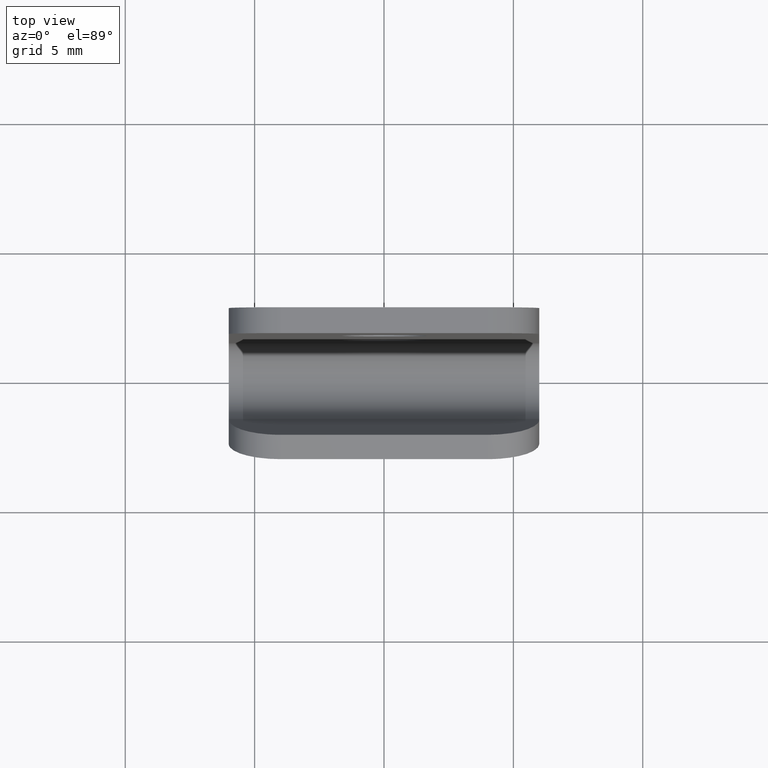
[diagram: clean part render]
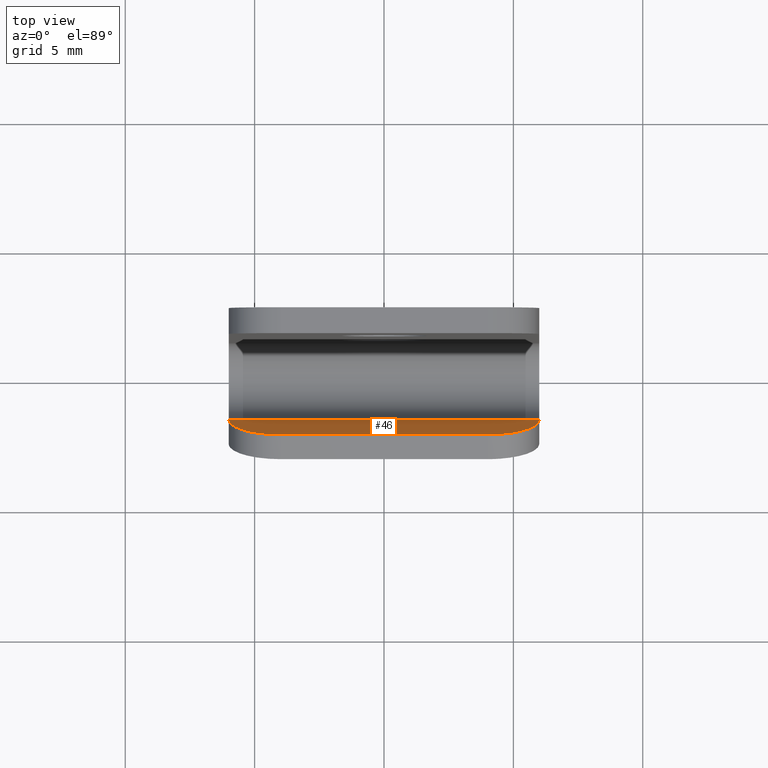
[diagram: same view with one face highlighted and labeled with its STEP entity id]
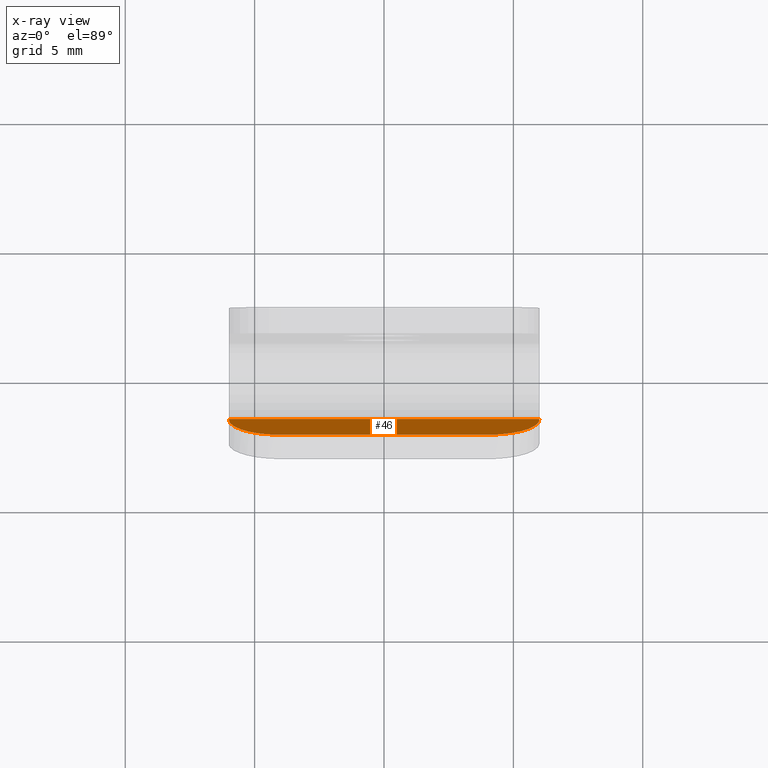
[diagram: x-ray of the same camera — body ghosted, the highlighted face saturated]
A machine part, top view. The second image highlights one B-rep face of the part: STEP entity #46.
The next image is the same camera in x-ray: the body ghosted, the highlighted face saturated — about 0% of this face is hidden behind the body in this view.
In plain terms, the highlighted planar face has unit normal (0, -0.9511, -0.309).
Its self-contained STEP definition (entity closure, byte-faithful):
#46=ADVANCED_FACE('',(#119),#118,.F.);
#118=PLANE('',#275);
#119=FACE_OUTER_BOUND('',#276,.T.);
#272=CARTESIAN_POINT('',(-7.20000000000E+00,-2.12837169133E+00,4.19635254916E+00));
#273=DIRECTION('',(0.00000000000E+00,-9.51056516295E-01,-3.09016994375E-01));
#274=DIRECTION('',(0.00000000000E+00,3.09016994375E-01,-9.51056516295E-01));
#275=AXIS2_PLACEMENT_3D('',#272,#273,#274);
#276=EDGE_LOOP('',(#370,#371,#372,#373,#374,#375));
#370=ORIENTED_EDGE('',*,*,#441,.T.);
#371=ORIENTED_EDGE('',*,*,#432,.T.);
#372=ORIENTED_EDGE('',*,*,#447,.F.);
#373=ORIENTED_EDGE('',*,*,#436,.T.);
#374=ORIENTED_EDGE('',*,*,#451,.F.);
#375=ORIENTED_EDGE('',*,*,#457,.T.);
#432=EDGE_CURVE('',#480,#481,#482,.T.);
#436=EDGE_CURVE('',#508,#509,#510,.T.);
#441=EDGE_CURVE('',#543,#480,#544,.T.);
#447=EDGE_CURVE('',#508,#481,#584,.T.);
#451=EDGE_CURVE('',#609,#509,#610,.T.);
#457=EDGE_CURVE('',#609,#543,#650,.T.);
#480=VERTEX_POINT('',#800);
#481=VERTEX_POINT('',#801);
#482=(BOUNDED_CURVE() B_SPLINE_CURVE(2,(#802,#803,#804),.UNSPECIFIED.,.F.,.F.) B_SPLINE_CURVE_WITH_KNOTS((3,3),(-4.71238898038E+00,-3.14159265359E+00),.UNSPECIFIED.) CURVE() GEOMETRIC_REPRESENTATION_ITEM() RATIONAL_B_SPLINE_CURVE((1.00000000000E+00,7.07106781187E-01,1.00000000000E+00)) REPRESENTATION_ITEM('') );
#508=VERTEX_POINT('',#816);
#509=VERTEX_POINT('',#817);
#510=(BOUNDED_CURVE() B_SPLINE_CURVE(2,(#818,#819,#820),.UNSPECIFIED.,.F.,.F.) B_SPLINE_CURVE_WITH_KNOTS((3,3),(-6.28318530718E+00,-4.71238898038E+00),.UNSPECIFIED.) CURVE() GEOMETRIC_REPRESENTATION_ITEM() RATIONAL_B_SPLINE_CURVE((1.00000000000E+00,7.07106781187E-01,1.00000000000E+00)) REPRESENTATION_ITEM('') );
#543=VERTEX_POINT('',#836);
#544=LINE('',#837,#838);
#584=LINE('',#861,#862);
#609=VERTEX_POINT('',#874);
#610=LINE('',#875,#876);
#650=LINE('',#899,#900);
#800=CARTESIAN_POINT('',(-6.00000000000E+00,-1.44574889648E+00,2.09545561134E+00));
#801=CARTESIAN_POINT('',(-4.00000000000E+00,-2.06457288071E+00,4.00000000000E+00));
#802=CARTESIAN_POINT('',(-6.00000000000E+00,-1.44574889648E+00,2.09545561134E+00));
#803=CARTESIAN_POINT('',(-6.00000000000E+00,-2.06457288071E+00,4.00000000000E+00));
#804=CARTESIAN_POINT('',(-4.00000000000E+00,-2.06457288071E+00,4.00000000000E+00));
#816=CARTESIAN_POINT('',(4.00000000000E+00,-2.06457288071E+00,4.00000000000E+00));
#817=CARTESIAN_POINT('',(6.00000000000E+00,-1.44574889648E+00,2.09545561134E+00));
#818=CARTESIAN_POINT('',(4.00000000000E+00,-2.06457288071E+00,4.00000000000E+00));
#819=CARTESIAN_POINT('',(6.00000000000E+00,-2.06457288071E+00,4.00000000000E+00));
#820=CARTESIAN_POINT('',(6.00000000000E+00,-1.44574889648E+00,2.09545561134E+00));
#836=CARTESIAN_POINT('',(-6.00000000000E+00,-1.42658477444E+00,2.03647450844E+00));
#837=CARTESIAN_POINT('',(-6.00000000000E+00,-1.42658477444E+00,2.03647450844E+00));
#838=VECTOR('',#839,6.20164016460E-02);
#839=DIRECTION('',(0.00000000000E+00,-3.09016994375E-01,9.51056516295E-01));
#861=CARTESIAN_POINT('',(4.00000000000E+00,-2.06457288071E+00,4.00000000000E+00));
#862=VECTOR('',#863,8.00000000000E+00);
#863=DIRECTION('',(-1.00000000000E+00,0.00000000000E+00,0.00000000000E+00));
#874=CARTESIAN_POINT('',(6.00000000000E+00,-1.42658477444E+00,2.03647450844E+00));
#875=CARTESIAN_POINT('',(6.00000000000E+00,-1.42658477444E+00,2.03647450844E+00));
#876=VECTOR('',#877,6.20164016460E-02);
#877=DIRECTION('',(0.00000000000E+00,-3.09016994375E-01,9.51056516295E-01));
#899=CARTESIAN_POINT('',(6.00000000000E+00,-1.42658477444E+00,2.03647450844E+00));
#900=VECTOR('',#901,1.20000000000E+01);
#901=DIRECTION('',(-1.00000000000E+00,0.00000000000E+00,0.00000000000E+00));